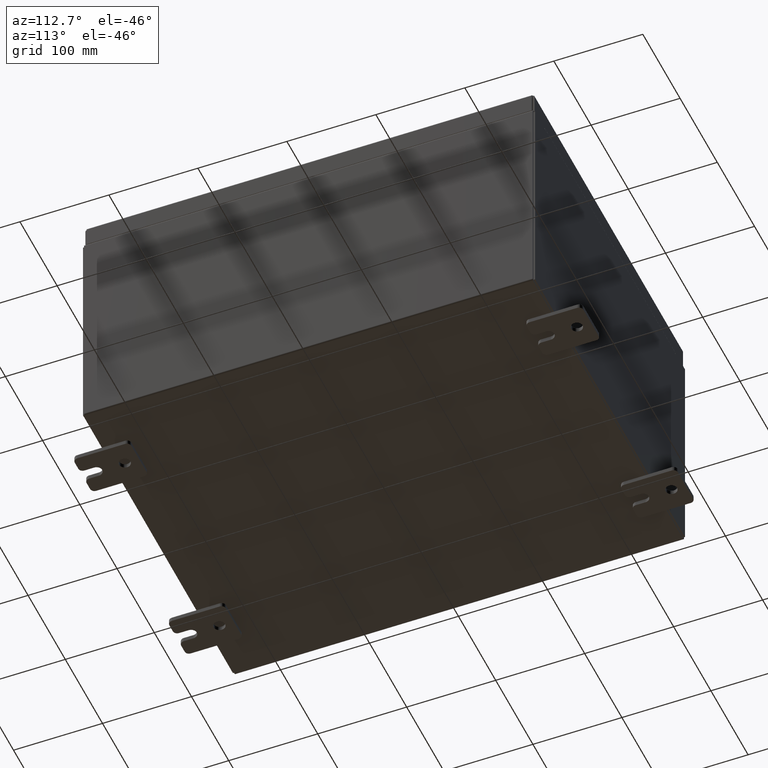
[diagram: clean part render]
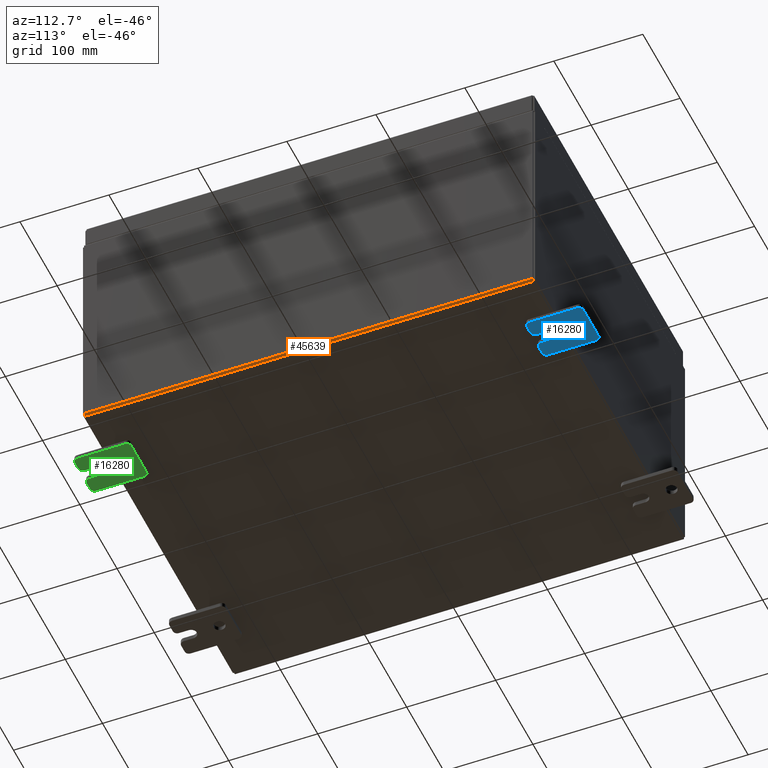
[diagram: same view with three faces highlighted in distinct colors, each labeled with its STEP entity id]
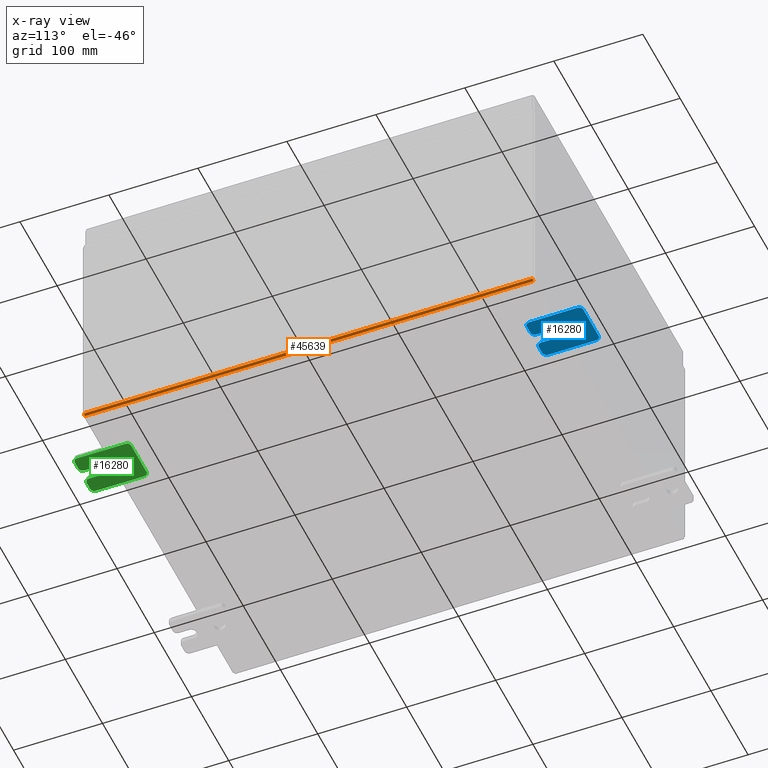
[diagram: x-ray of the same camera — body ghosted, the three highlighted faces saturated]
A machine part, auxiliary view with three faces highlighted in distinct colors.
The next image is the same camera in x-ray (body ghosted, the three faces saturated) — at least one of them is partly hidden behind the body in this view.
Their STEP definitions:

[orange] entity #45639 — the highlighted cylindrical surface (edge-blend (fillet) strip) has radius 2.2276 mm, axis along (0, 1, 0).
#1609 = EDGE_CURVE ( 'NONE', #7943, #34132, #3031, .T. ) ;
#2928 = CIRCLE ( 'NONE', #48213, 0.08770000000000009700 ) ;
#3031 = CIRCLE ( 'NONE', #47885, 0.08770000000000009700 ) ;
#4099 = ORIENTED_EDGE ( 'NONE', *, *, #44708, .T. ) ;
#4550 = ORIENTED_EDGE ( 'NONE', *, *, #10082, .F. ) ;
#5350 = FACE_OUTER_BOUND ( 'NONE', #13927, .T. ) ;
#7943 = VERTEX_POINT ( 'NONE', #9067 ) ;
#8270 = CARTESIAN_POINT ( 'NONE',  ( 7.912300000000001900, 9.925299999999992900, -0.07469999999999994700 ) ) ;
#9067 = CARTESIAN_POINT ( 'NONE',  ( 7.912300000000001900, -9.925300000000001800, -0.07470000000000000300 ) ) ;
#9181 = ORIENTED_EDGE ( 'NONE', *, *, #12337, .F. ) ;
#10082 = EDGE_CURVE ( 'NONE', #15833, #7943, #48026, .T. ) ;
#10287 = DIRECTION ( 'NONE',  ( -0.0000000000000000000, -1.000000000000000000, -0.0000000000000000000 ) ) ;
#12337 = EDGE_CURVE ( 'NONE', #43355, #15833, #2928, .T. ) ;
#13390 = CARTESIAN_POINT ( 'NONE',  ( 7.912300000000001900, 9.925299999999998200, 0.01300000000000015200 ) ) ;
#13927 = EDGE_LOOP ( 'NONE', ( #4550, #9181, #4099, #30922 ) ) ;
#15833 = VERTEX_POINT ( 'NONE', #8270 ) ;
#16811 = VECTOR ( 'NONE', #60551, 39.37007874015748100 ) ;
#18159 = DIRECTION ( 'NONE',  ( 0.0000000000000000000, 0.0000000000000000000, 1.000000000000000000 ) ) ;
#18283 = DIRECTION ( 'NONE',  ( 1.000000000000000000, 0.0000000000000000000, -3.528701887483225300E-015 ) ) ;
#18836 = CARTESIAN_POINT ( 'NONE',  ( 7.912300000000001900, 9.925299999999992900, 0.01300000000000015200 ) ) ;
#19864 = LINE ( 'NONE', #31371, #16811 ) ;
#22096 = VECTOR ( 'NONE', #10287, 39.37007874015748100 ) ;
#23736 = DIRECTION ( 'NONE',  ( 0.0000000000000000000, 0.0000000000000000000, 1.000000000000000000 ) ) ;
#26428 = CARTESIAN_POINT ( 'NONE',  ( 7.912300000000001900, -9.925300000000001800, 0.01300000000000015200 ) ) ;
#27864 = DIRECTION ( 'NONE',  ( 0.0000000000000000000, 1.000000000000000000, 0.0000000000000000000 ) ) ;
#28155 = CYLINDRICAL_SURFACE ( 'NONE', #29534, 0.08770000000000026400 ) ;
#29258 = CARTESIAN_POINT ( 'NONE',  ( 8.000000000000001800, -9.925300000000001800, 0.01299999999999984300 ) ) ;
#29534 = AXIS2_PLACEMENT_3D ( 'NONE', #13390, #27864, #18283 ) ;
#30922 = ORIENTED_EDGE ( 'NONE', *, *, #1609, .F. ) ;
#31371 = CARTESIAN_POINT ( 'NONE',  ( 8.000000000000001800, -9.925300000000001800, 0.01299999999999984700 ) ) ;
#34132 = VERTEX_POINT ( 'NONE', #29258 ) ;
#34235 = CARTESIAN_POINT ( 'NONE',  ( 8.000000000000001800, 9.925299999999992900, 0.01299999999999984700 ) ) ;
#40147 = DIRECTION ( 'NONE',  ( -0.0000000000000000000, -1.000000000000000000, -0.0000000000000000000 ) ) ;
#43355 = VERTEX_POINT ( 'NONE', #34235 ) ;
#44708 = EDGE_CURVE ( 'NONE', #43355, #34132, #19864, .T. ) ;
#45639 = ADVANCED_FACE ( 'NONE', ( #5350 ), #28155, .T. ) ;
#47885 = AXIS2_PLACEMENT_3D ( 'NONE', #26428, #40147, #18159 ) ;
#48026 = LINE ( 'NONE', #59060, #22096 ) ;
#48213 = AXIS2_PLACEMENT_3D ( 'NONE', #18836, #52922, #23736 ) ;
#52922 = DIRECTION ( 'NONE',  ( 0.0000000000000000000, 1.000000000000000000, 0.0000000000000000000 ) ) ;
#59060 = CARTESIAN_POINT ( 'NONE',  ( 7.912300000000001900, 9.925299999999998200, -0.07469999999999994700 ) ) ;
#60551 = DIRECTION ( 'NONE',  ( -0.0000000000000000000, -1.000000000000000000, -0.0000000000000000000 ) ) ;

[blue] entity #16280 — the highlighted planar face has unit normal (0, 0, 1).
#201 = CARTESIAN_POINT ( 'NONE',  ( -0.1879999999999997800, 1.059999999999996300, 0.8099999999999938400 ) ) ;
#1130 = EDGE_CURVE ( 'NONE', #49562, #47235, #24274, .T. ) ;
#1645 = AXIS2_PLACEMENT_3D ( 'NONE', #61835, #32651, #3491 ) ;
#3131 = CARTESIAN_POINT ( 'NONE',  ( -0.1879999999999997800, -1.060000000000004500, -1.000000000000006400 ) ) ;
#3401 = DIRECTION ( 'NONE',  ( 0.0000000000000000000, 0.0000000000000000000, -1.000000000000000000 ) ) ;
#3464 = ORIENTED_EDGE ( 'NONE', *, *, #58450, .F. ) ;
#3491 = DIRECTION ( 'NONE',  ( 0.0000000000000000000, 7.189073667537492800E-016, -1.000000000000000000 ) ) ;
#4491 = CARTESIAN_POINT ( 'NONE',  ( -0.1880000000000001900, -0.6249999999999992200, -0.2499999999999993900 ) ) ;
#4892 = CARTESIAN_POINT ( 'NONE',  ( -0.1880000000000010000, 0.6249999999999992200, -7.703811342100550500E-020 ) ) ;
#5092 = DIRECTION ( 'NONE',  ( 0.0000000000000000000, 0.0000000000000000000, -1.000000000000000000 ) ) ;
#5299 = CARTESIAN_POINT ( 'NONE',  ( -0.1880000000000010000, 0.6249999999999992200, -0.2499999999999999200 ) ) ;
#5671 = EDGE_CURVE ( 'NONE', #59398, #29991, #15731, .T. ) ;
#6518 = CARTESIAN_POINT ( 'NONE',  ( -0.1879999999999997800, 1.249999999999997600, 0.9999999999999951200 ) ) ;
#7316 = DIRECTION ( 'NONE',  ( 0.0000000000000000000, -1.639108796198553600E-015, -1.000000000000000000 ) ) ;
#9438 = DIRECTION ( 'NONE',  ( 0.0000000000000000000, -1.639108796198553600E-015, -1.000000000000000000 ) ) ;
#9797 = DIRECTION ( 'NONE',  ( 0.0000000000000000000, 0.0000000000000000000, -1.000000000000000000 ) ) ;
#10054 = VERTEX_POINT ( 'NONE', #44350 ) ;
#10755 = DIRECTION ( 'NONE',  ( 0.0000000000000000000, 1.000000000000000000, -1.639108796198558100E-015 ) ) ;
#11328 = ORIENTED_EDGE ( 'NONE', *, *, #57592, .F. ) ;
#11867 = CIRCLE ( 'NONE', #1645, 0.1900000000000011100 ) ;
#11933 = ORIENTED_EDGE ( 'NONE', *, *, #38798, .T. ) ;
#12392 = CARTESIAN_POINT ( 'NONE',  ( -0.1880000000000010000, 0.6249999999999992200, -7.703811342100550500E-020 ) ) ;
#12578 = ORIENTED_EDGE ( 'NONE', *, *, #56955, .T. ) ;
#12721 = DIRECTION ( 'NONE',  ( 6.556435184794182400E-016, 1.000000000000000000, 0.0000000000000000000 ) ) ;
#12823 = ORIENTED_EDGE ( 'NONE', *, *, #1130, .T. ) ;
#13055 = ORIENTED_EDGE ( 'NONE', *, *, #31476, .T. ) ;
#13184 = CARTESIAN_POINT ( 'NONE',  ( -0.1879999999999997800, -1.060000000000003400, -0.4400000000000005000 ) ) ;
#13795 = ORIENTED_EDGE ( 'NONE', *, *, #52149, .T. ) ;
#14307 = EDGE_CURVE ( 'NONE', #48377, #16268, #53113, .T. ) ;
#14353 = ORIENTED_EDGE ( 'NONE', *, *, #54410, .F. ) ;
#14421 = AXIS2_PLACEMENT_3D ( 'NONE', #15750, #49833, #20629 ) ;
#14475 = DIRECTION ( 'NONE',  ( -6.556435184794182400E-016, -1.000000000000000000, -1.639108796198545600E-016 ) ) ;
#14495 = CIRCLE ( 'NONE', #16638, 0.1900000000000011100 ) ;
#15440 = VERTEX_POINT ( 'NONE', #3131 ) ;
#15520 = EDGE_CURVE ( 'NONE', #10054, #50348, #33980, .T. ) ;
#15563 = CARTESIAN_POINT ( 'NONE',  ( -0.1879999999999997800, -1.060000000000001200, 0.9999999999999988900 ) ) ;
#15731 = CIRCLE ( 'NONE', #60254, 0.1900000000000011100 ) ;
#15750 = CARTESIAN_POINT ( 'NONE',  ( -0.1880000000000001900, -0.6249999999999992200, 6.829619984160658000E-017 ) ) ;
#16268 = VERTEX_POINT ( 'NONE', #15563 ) ;
#16280 = ADVANCED_FACE ( 'NONE', ( #52987, #51447 ), #44767, .F. ) ;
#16638 = AXIS2_PLACEMENT_3D ( 'NONE', #201, #34253, #5092 ) ;
#16858 = DIRECTION ( 'NONE',  ( 0.0000000000000000000, 1.639108796198553600E-015, 1.000000000000000000 ) ) ;
#17189 = CARTESIAN_POINT ( 'NONE',  ( -0.1879999999999997800, -1.250000000000004700, -0.4400000000000002200 ) ) ;
#17271 = DIRECTION ( 'NONE',  ( 0.0000000000000000000, 0.0000000000000000000, -1.000000000000000000 ) ) ;
#18084 = DIRECTION ( 'NONE',  ( 0.0000000000000000000, 0.0000000000000000000, -1.000000000000000000 ) ) ;
#18378 = CIRCLE ( 'NONE', #58651, 0.1900000000000011400 ) ;
#20462 = DIRECTION ( 'NONE',  ( 1.000000000000000000, 0.0000000000000000000, -0.0000000000000000000 ) ) ;
#20629 = DIRECTION ( 'NONE',  ( -6.829619984160660000E-016, -1.000000000000000000, 0.0000000000000000000 ) ) ;
#20790 = CARTESIAN_POINT ( 'NONE',  ( -0.1879999999999997800, -1.250000000000003100, 0.4400000000000020000 ) ) ;
#21456 = LINE ( 'NONE', #39920, #37438 ) ;
#22131 = ORIENTED_EDGE ( 'NONE', *, *, #44746, .F. ) ;
#22721 = VECTOR ( 'NONE', #14475, 39.37007874015748100 ) ;
#23038 = ORIENTED_EDGE ( 'NONE', *, *, #14307, .F. ) ;
#24274 = CIRCLE ( 'NONE', #29525, 0.1900000000000011100 ) ;
#24435 = ORIENTED_EDGE ( 'NONE', *, *, #45860, .T. ) ;
#27336 = VERTEX_POINT ( 'NONE', #20790 ) ;
#27380 = CARTESIAN_POINT ( 'NONE',  ( -0.1879999999999997800, -1.060000000000002100, 0.4400000000000016700 ) ) ;
#27593 = CARTESIAN_POINT ( 'NONE',  ( -0.1879999999999997800, 1.249999999999994700, -0.8100000000000092700 ) ) ;
#28203 = VECTOR ( 'NONE', #7316, 39.37007874015748100 ) ;
#28481 = ORIENTED_EDGE ( 'NONE', *, *, #15520, .F. ) ;
#29054 = CIRCLE ( 'NONE', #55663, 0.1900000000000011100 ) ;
#29525 = AXIS2_PLACEMENT_3D ( 'NONE', #39522, #35116, #40438 ) ;
#29991 = VERTEX_POINT ( 'NONE', #38724 ) ;
#30373 = ORIENTED_EDGE ( 'NONE', *, *, #30633, .F. ) ;
#30390 = EDGE_LOOP ( 'NONE', ( #22131, #11933, #23038, #13795, #3464, #12823, #30373, #13055, #54414, #38331, #14353, #28481, #11328, #56049 ) ) ;
#30494 = CARTESIAN_POINT ( 'NONE',  ( -0.1879999999999997800, -1.250000000000005300, -0.8100000000000047200 ) ) ;
#30633 = EDGE_CURVE ( 'NONE', #15440, #47235, #21456, .T. ) ;
#30937 = VECTOR ( 'NONE', #12721, 39.37007874015748100 ) ;
#31476 = EDGE_CURVE ( 'NONE', #15440, #35544, #29054, .T. ) ;
#31584 = AXIS2_PLACEMENT_3D ( 'NONE', #39855, #20462, #54564 ) ;
#31720 = CIRCLE ( 'NONE', #57234, 0.2499999999999999200 ) ;
#32289 = DIRECTION ( 'NONE',  ( 0.0000000000000000000, 0.0000000000000000000, -1.000000000000000000 ) ) ;
#32568 = DIRECTION ( 'NONE',  ( -1.000000000000000000, -0.0000000000000000000, 0.0000000000000000000 ) ) ;
#32595 = CARTESIAN_POINT ( 'NONE',  ( -0.1880000000000010000, 0.6249999999999992200, 0.2499999999999999200 ) ) ;
#32651 = DIRECTION ( 'NONE',  ( -1.000000000000000000, -0.0000000000000000000, 0.0000000000000000000 ) ) ;
#32762 = AXIS2_PLACEMENT_3D ( 'NONE', #4892, #38959, #9797 ) ;
#33980 = CIRCLE ( 'NONE', #14421, 0.2499999999999999200 ) ;
#34253 = DIRECTION ( 'NONE',  ( -1.000000000000000000, -0.0000000000000000000, 0.0000000000000000000 ) ) ;
#35116 = DIRECTION ( 'NONE',  ( -1.000000000000000000, -0.0000000000000000000, 0.0000000000000000000 ) ) ;
#35544 = VERTEX_POINT ( 'NONE', #30494 ) ;
#35933 = VECTOR ( 'NONE', #9438, 39.37007874015748100 ) ;
#36546 = CIRCLE ( 'NONE', #32762, 0.2499999999999999200 ) ;
#37438 = VECTOR ( 'NONE', #10755, 39.37007874015748100 ) ;
#38331 = ORIENTED_EDGE ( 'NONE', *, *, #5671, .T. ) ;
#38600 = CARTESIAN_POINT ( 'NONE',  ( -0.1879999999999997800, -1.250000000000002200, 0.9999999999999992200 ) ) ;
#38687 = CARTESIAN_POINT ( 'NONE',  ( -0.1880000000000004700, -1.060000000000002100, 0.2500000000000005000 ) ) ;
#38724 = CARTESIAN_POINT ( 'NONE',  ( -0.1880000000000004700, -1.060000000000003400, -0.2499999999999994400 ) ) ;
#38798 = EDGE_CURVE ( 'NONE', #62572, #16268, #11867, .T. ) ;
#38959 = DIRECTION ( 'NONE',  ( 1.000000000000000000, -0.0000000000000000000, -5.163192708025532000E-017 ) ) ;
#39522 = CARTESIAN_POINT ( 'NONE',  ( -0.1879999999999997800, 1.059999999999993600, -0.8100000000000089400 ) ) ;
#39855 = CARTESIAN_POINT ( 'NONE',  ( -0.1879999999999997800, 0.0000000000000000000, 0.0000000000000000000 ) ) ;
#39920 = CARTESIAN_POINT ( 'NONE',  ( -0.1879999999999997800, -1.250000000000005600, -1.000000000000006200 ) ) ;
#40133 = VECTOR ( 'NONE', #40798, 39.37007874015748100 ) ;
#40438 = DIRECTION ( 'NONE',  ( 0.0000000000000000000, 0.0000000000000000000, -1.000000000000000000 ) ) ;
#40637 = CARTESIAN_POINT ( 'NONE',  ( -0.1879999999999997800, 1.059999999999993400, -1.000000000000010000 ) ) ;
#40798 = DIRECTION ( 'NONE',  ( 0.0000000000000000000, -1.000000000000000000, 1.639108796198558100E-015 ) ) ;
#41216 = LINE ( 'NONE', #55882, #28203 ) ;
#41772 = VERTEX_POINT ( 'NONE', #32595 ) ;
#41915 = CARTESIAN_POINT ( 'NONE',  ( -0.1880000000000005800, -1.250000000000003800, 0.2500000000000005000 ) ) ;
#43911 = LINE ( 'NONE', #41915, #30937 ) ;
#43950 = EDGE_LOOP ( 'NONE', ( #24435, #12578 ) ) ;
#44350 = CARTESIAN_POINT ( 'NONE',  ( -0.1880000000000001900, -0.6249999999999992200, 0.2500000000000005000 ) ) ;
#44517 = VERTEX_POINT ( 'NONE', #5299 ) ;
#44746 = EDGE_CURVE ( 'NONE', #62572, #27336, #41216, .T. ) ;
#44767 = PLANE ( 'NONE',  #31584 ) ;
#45860 = EDGE_CURVE ( 'NONE', #44517, #41772, #36546, .T. ) ;
#46063 = CARTESIAN_POINT ( 'NONE',  ( -0.1879999999999997800, 1.249999999999994200, -1.000000000000010400 ) ) ;
#46484 = DIRECTION ( 'NONE',  ( 1.000000000000000000, -0.0000000000000000000, -5.163192708025532000E-017 ) ) ;
#46601 = CARTESIAN_POINT ( 'NONE',  ( -0.1880000000000001900, -0.6249999999999992200, -0.2499999999999998600 ) ) ;
#47235 = VERTEX_POINT ( 'NONE', #40637 ) ;
#47269 = DIRECTION ( 'NONE',  ( -1.000000000000000000, -0.0000000000000000000, 0.0000000000000000000 ) ) ;
#48377 = VERTEX_POINT ( 'NONE', #52037 ) ;
#49562 = VERTEX_POINT ( 'NONE', #27593 ) ;
#49833 = DIRECTION ( 'NONE',  ( -1.000000000000000000, 6.523827964459549700E-016, 5.163192708025532000E-017 ) ) ;
#50195 = LINE ( 'NONE', #4491, #22721 ) ;
#50348 = VERTEX_POINT ( 'NONE', #46601 ) ;
#50399 = EDGE_CURVE ( 'NONE', #59806, #27336, #18378, .T. ) ;
#51447 = FACE_OUTER_BOUND ( 'NONE', #30390, .T. ) ;
#51466 = VECTOR ( 'NONE', #16858, 39.37007874015748100 ) ;
#52037 = CARTESIAN_POINT ( 'NONE',  ( -0.1879999999999997800, 1.059999999999996500, 0.9999999999999953400 ) ) ;
#52149 = EDGE_CURVE ( 'NONE', #48377, #58262, #14495, .T. ) ;
#52987 = FACE_BOUND ( 'NONE', #43950, .T. ) ;
#53113 = LINE ( 'NONE', #6518, #40133 ) ;
#54410 = EDGE_CURVE ( 'NONE', #50348, #29991, #50195, .T. ) ;
#54414 = ORIENTED_EDGE ( 'NONE', *, *, #62047, .F. ) ;
#54564 = DIRECTION ( 'NONE',  ( -0.0000000000000000000, 0.0000000000000000000, -1.000000000000000000 ) ) ;
#55663 = AXIS2_PLACEMENT_3D ( 'NONE', #61746, #32568, #3401 ) ;
#55882 = CARTESIAN_POINT ( 'NONE',  ( -0.1879999999999997800, -1.250000000000002200, 0.9999999999999992200 ) ) ;
#55909 = CARTESIAN_POINT ( 'NONE',  ( -0.1879999999999997800, -1.250000000000002400, 0.8099999999999980500 ) ) ;
#56049 = ORIENTED_EDGE ( 'NONE', *, *, #50399, .T. ) ;
#56955 = EDGE_CURVE ( 'NONE', #41772, #44517, #31720, .T. ) ;
#57234 = AXIS2_PLACEMENT_3D ( 'NONE', #12392, #46484, #17271 ) ;
#57592 = EDGE_CURVE ( 'NONE', #59806, #10054, #43911, .T. ) ;
#58262 = VERTEX_POINT ( 'NONE', #58728 ) ;
#58450 = EDGE_CURVE ( 'NONE', #49562, #58262, #59860, .T. ) ;
#58651 = AXIS2_PLACEMENT_3D ( 'NONE', #27380, #61477, #32289 ) ;
#58728 = CARTESIAN_POINT ( 'NONE',  ( -0.1879999999999997800, 1.249999999999997300, 0.8099999999999935000 ) ) ;
#59398 = VERTEX_POINT ( 'NONE', #17189 ) ;
#59806 = VERTEX_POINT ( 'NONE', #38687 ) ;
#59860 = LINE ( 'NONE', #46063, #51466 ) ;
#60254 = AXIS2_PLACEMENT_3D ( 'NONE', #13184, #47269, #18084 ) ;
#60334 = LINE ( 'NONE', #38600, #35933 ) ;
#61477 = DIRECTION ( 'NONE',  ( -1.000000000000000000, -0.0000000000000000000, 0.0000000000000000000 ) ) ;
#61746 = CARTESIAN_POINT ( 'NONE',  ( -0.1879999999999997800, -1.060000000000004100, -0.8100000000000050500 ) ) ;
#61835 = CARTESIAN_POINT ( 'NONE',  ( -0.1879999999999997800, -1.060000000000001600, 0.8099999999999978300 ) ) ;
#62047 = EDGE_CURVE ( 'NONE', #59398, #35544, #60334, .T. ) ;
#62572 = VERTEX_POINT ( 'NONE', #55909 ) ;

[green] entity #16280 — the highlighted planar face has unit normal (0, 0, 1).
#201 = CARTESIAN_POINT ( 'NONE',  ( -0.1879999999999997800, 1.059999999999996300, 0.8099999999999938400 ) ) ;
#1130 = EDGE_CURVE ( 'NONE', #49562, #47235, #24274, .T. ) ;
#1645 = AXIS2_PLACEMENT_3D ( 'NONE', #61835, #32651, #3491 ) ;
#3131 = CARTESIAN_POINT ( 'NONE',  ( -0.1879999999999997800, -1.060000000000004500, -1.000000000000006400 ) ) ;
#3401 = DIRECTION ( 'NONE',  ( 0.0000000000000000000, 0.0000000000000000000, -1.000000000000000000 ) ) ;
#3464 = ORIENTED_EDGE ( 'NONE', *, *, #58450, .F. ) ;
#3491 = DIRECTION ( 'NONE',  ( 0.0000000000000000000, 7.189073667537492800E-016, -1.000000000000000000 ) ) ;
#4491 = CARTESIAN_POINT ( 'NONE',  ( -0.1880000000000001900, -0.6249999999999992200, -0.2499999999999993900 ) ) ;
#4892 = CARTESIAN_POINT ( 'NONE',  ( -0.1880000000000010000, 0.6249999999999992200, -7.703811342100550500E-020 ) ) ;
#5092 = DIRECTION ( 'NONE',  ( 0.0000000000000000000, 0.0000000000000000000, -1.000000000000000000 ) ) ;
#5299 = CARTESIAN_POINT ( 'NONE',  ( -0.1880000000000010000, 0.6249999999999992200, -0.2499999999999999200 ) ) ;
#5671 = EDGE_CURVE ( 'NONE', #59398, #29991, #15731, .T. ) ;
#6518 = CARTESIAN_POINT ( 'NONE',  ( -0.1879999999999997800, 1.249999999999997600, 0.9999999999999951200 ) ) ;
#7316 = DIRECTION ( 'NONE',  ( 0.0000000000000000000, -1.639108796198553600E-015, -1.000000000000000000 ) ) ;
#9438 = DIRECTION ( 'NONE',  ( 0.0000000000000000000, -1.639108796198553600E-015, -1.000000000000000000 ) ) ;
#9797 = DIRECTION ( 'NONE',  ( 0.0000000000000000000, 0.0000000000000000000, -1.000000000000000000 ) ) ;
#10054 = VERTEX_POINT ( 'NONE', #44350 ) ;
#10755 = DIRECTION ( 'NONE',  ( 0.0000000000000000000, 1.000000000000000000, -1.639108796198558100E-015 ) ) ;
#11328 = ORIENTED_EDGE ( 'NONE', *, *, #57592, .F. ) ;
#11867 = CIRCLE ( 'NONE', #1645, 0.1900000000000011100 ) ;
#11933 = ORIENTED_EDGE ( 'NONE', *, *, #38798, .T. ) ;
#12392 = CARTESIAN_POINT ( 'NONE',  ( -0.1880000000000010000, 0.6249999999999992200, -7.703811342100550500E-020 ) ) ;
#12578 = ORIENTED_EDGE ( 'NONE', *, *, #56955, .T. ) ;
#12721 = DIRECTION ( 'NONE',  ( 6.556435184794182400E-016, 1.000000000000000000, 0.0000000000000000000 ) ) ;
#12823 = ORIENTED_EDGE ( 'NONE', *, *, #1130, .T. ) ;
#13055 = ORIENTED_EDGE ( 'NONE', *, *, #31476, .T. ) ;
#13184 = CARTESIAN_POINT ( 'NONE',  ( -0.1879999999999997800, -1.060000000000003400, -0.4400000000000005000 ) ) ;
#13795 = ORIENTED_EDGE ( 'NONE', *, *, #52149, .T. ) ;
#14307 = EDGE_CURVE ( 'NONE', #48377, #16268, #53113, .T. ) ;
#14353 = ORIENTED_EDGE ( 'NONE', *, *, #54410, .F. ) ;
#14421 = AXIS2_PLACEMENT_3D ( 'NONE', #15750, #49833, #20629 ) ;
#14475 = DIRECTION ( 'NONE',  ( -6.556435184794182400E-016, -1.000000000000000000, -1.639108796198545600E-016 ) ) ;
#14495 = CIRCLE ( 'NONE', #16638, 0.1900000000000011100 ) ;
#15440 = VERTEX_POINT ( 'NONE', #3131 ) ;
#15520 = EDGE_CURVE ( 'NONE', #10054, #50348, #33980, .T. ) ;
#15563 = CARTESIAN_POINT ( 'NONE',  ( -0.1879999999999997800, -1.060000000000001200, 0.9999999999999988900 ) ) ;
#15731 = CIRCLE ( 'NONE', #60254, 0.1900000000000011100 ) ;
#15750 = CARTESIAN_POINT ( 'NONE',  ( -0.1880000000000001900, -0.6249999999999992200, 6.829619984160658000E-017 ) ) ;
#16268 = VERTEX_POINT ( 'NONE', #15563 ) ;
#16280 = ADVANCED_FACE ( 'NONE', ( #52987, #51447 ), #44767, .F. ) ;
#16638 = AXIS2_PLACEMENT_3D ( 'NONE', #201, #34253, #5092 ) ;
#16858 = DIRECTION ( 'NONE',  ( 0.0000000000000000000, 1.639108796198553600E-015, 1.000000000000000000 ) ) ;
#17189 = CARTESIAN_POINT ( 'NONE',  ( -0.1879999999999997800, -1.250000000000004700, -0.4400000000000002200 ) ) ;
#17271 = DIRECTION ( 'NONE',  ( 0.0000000000000000000, 0.0000000000000000000, -1.000000000000000000 ) ) ;
#18084 = DIRECTION ( 'NONE',  ( 0.0000000000000000000, 0.0000000000000000000, -1.000000000000000000 ) ) ;
#18378 = CIRCLE ( 'NONE', #58651, 0.1900000000000011400 ) ;
#20462 = DIRECTION ( 'NONE',  ( 1.000000000000000000, 0.0000000000000000000, -0.0000000000000000000 ) ) ;
#20629 = DIRECTION ( 'NONE',  ( -6.829619984160660000E-016, -1.000000000000000000, 0.0000000000000000000 ) ) ;
#20790 = CARTESIAN_POINT ( 'NONE',  ( -0.1879999999999997800, -1.250000000000003100, 0.4400000000000020000 ) ) ;
#21456 = LINE ( 'NONE', #39920, #37438 ) ;
#22131 = ORIENTED_EDGE ( 'NONE', *, *, #44746, .F. ) ;
#22721 = VECTOR ( 'NONE', #14475, 39.37007874015748100 ) ;
#23038 = ORIENTED_EDGE ( 'NONE', *, *, #14307, .F. ) ;
#24274 = CIRCLE ( 'NONE', #29525, 0.1900000000000011100 ) ;
#24435 = ORIENTED_EDGE ( 'NONE', *, *, #45860, .T. ) ;
#27336 = VERTEX_POINT ( 'NONE', #20790 ) ;
#27380 = CARTESIAN_POINT ( 'NONE',  ( -0.1879999999999997800, -1.060000000000002100, 0.4400000000000016700 ) ) ;
#27593 = CARTESIAN_POINT ( 'NONE',  ( -0.1879999999999997800, 1.249999999999994700, -0.8100000000000092700 ) ) ;
#28203 = VECTOR ( 'NONE', #7316, 39.37007874015748100 ) ;
#28481 = ORIENTED_EDGE ( 'NONE', *, *, #15520, .F. ) ;
#29054 = CIRCLE ( 'NONE', #55663, 0.1900000000000011100 ) ;
#29525 = AXIS2_PLACEMENT_3D ( 'NONE', #39522, #35116, #40438 ) ;
#29991 = VERTEX_POINT ( 'NONE', #38724 ) ;
#30373 = ORIENTED_EDGE ( 'NONE', *, *, #30633, .F. ) ;
#30390 = EDGE_LOOP ( 'NONE', ( #22131, #11933, #23038, #13795, #3464, #12823, #30373, #13055, #54414, #38331, #14353, #28481, #11328, #56049 ) ) ;
#30494 = CARTESIAN_POINT ( 'NONE',  ( -0.1879999999999997800, -1.250000000000005300, -0.8100000000000047200 ) ) ;
#30633 = EDGE_CURVE ( 'NONE', #15440, #47235, #21456, .T. ) ;
#30937 = VECTOR ( 'NONE', #12721, 39.37007874015748100 ) ;
#31476 = EDGE_CURVE ( 'NONE', #15440, #35544, #29054, .T. ) ;
#31584 = AXIS2_PLACEMENT_3D ( 'NONE', #39855, #20462, #54564 ) ;
#31720 = CIRCLE ( 'NONE', #57234, 0.2499999999999999200 ) ;
#32289 = DIRECTION ( 'NONE',  ( 0.0000000000000000000, 0.0000000000000000000, -1.000000000000000000 ) ) ;
#32568 = DIRECTION ( 'NONE',  ( -1.000000000000000000, -0.0000000000000000000, 0.0000000000000000000 ) ) ;
#32595 = CARTESIAN_POINT ( 'NONE',  ( -0.1880000000000010000, 0.6249999999999992200, 0.2499999999999999200 ) ) ;
#32651 = DIRECTION ( 'NONE',  ( -1.000000000000000000, -0.0000000000000000000, 0.0000000000000000000 ) ) ;
#32762 = AXIS2_PLACEMENT_3D ( 'NONE', #4892, #38959, #9797 ) ;
#33980 = CIRCLE ( 'NONE', #14421, 0.2499999999999999200 ) ;
#34253 = DIRECTION ( 'NONE',  ( -1.000000000000000000, -0.0000000000000000000, 0.0000000000000000000 ) ) ;
#35116 = DIRECTION ( 'NONE',  ( -1.000000000000000000, -0.0000000000000000000, 0.0000000000000000000 ) ) ;
#35544 = VERTEX_POINT ( 'NONE', #30494 ) ;
#35933 = VECTOR ( 'NONE', #9438, 39.37007874015748100 ) ;
#36546 = CIRCLE ( 'NONE', #32762, 0.2499999999999999200 ) ;
#37438 = VECTOR ( 'NONE', #10755, 39.37007874015748100 ) ;
#38331 = ORIENTED_EDGE ( 'NONE', *, *, #5671, .T. ) ;
#38600 = CARTESIAN_POINT ( 'NONE',  ( -0.1879999999999997800, -1.250000000000002200, 0.9999999999999992200 ) ) ;
#38687 = CARTESIAN_POINT ( 'NONE',  ( -0.1880000000000004700, -1.060000000000002100, 0.2500000000000005000 ) ) ;
#38724 = CARTESIAN_POINT ( 'NONE',  ( -0.1880000000000004700, -1.060000000000003400, -0.2499999999999994400 ) ) ;
#38798 = EDGE_CURVE ( 'NONE', #62572, #16268, #11867, .T. ) ;
#38959 = DIRECTION ( 'NONE',  ( 1.000000000000000000, -0.0000000000000000000, -5.163192708025532000E-017 ) ) ;
#39522 = CARTESIAN_POINT ( 'NONE',  ( -0.1879999999999997800, 1.059999999999993600, -0.8100000000000089400 ) ) ;
#39855 = CARTESIAN_POINT ( 'NONE',  ( -0.1879999999999997800, 0.0000000000000000000, 0.0000000000000000000 ) ) ;
#39920 = CARTESIAN_POINT ( 'NONE',  ( -0.1879999999999997800, -1.250000000000005600, -1.000000000000006200 ) ) ;
#40133 = VECTOR ( 'NONE', #40798, 39.37007874015748100 ) ;
#40438 = DIRECTION ( 'NONE',  ( 0.0000000000000000000, 0.0000000000000000000, -1.000000000000000000 ) ) ;
#40637 = CARTESIAN_POINT ( 'NONE',  ( -0.1879999999999997800, 1.059999999999993400, -1.000000000000010000 ) ) ;
#40798 = DIRECTION ( 'NONE',  ( 0.0000000000000000000, -1.000000000000000000, 1.639108796198558100E-015 ) ) ;
#41216 = LINE ( 'NONE', #55882, #28203 ) ;
#41772 = VERTEX_POINT ( 'NONE', #32595 ) ;
#41915 = CARTESIAN_POINT ( 'NONE',  ( -0.1880000000000005800, -1.250000000000003800, 0.2500000000000005000 ) ) ;
#43911 = LINE ( 'NONE', #41915, #30937 ) ;
#43950 = EDGE_LOOP ( 'NONE', ( #24435, #12578 ) ) ;
#44350 = CARTESIAN_POINT ( 'NONE',  ( -0.1880000000000001900, -0.6249999999999992200, 0.2500000000000005000 ) ) ;
#44517 = VERTEX_POINT ( 'NONE', #5299 ) ;
#44746 = EDGE_CURVE ( 'NONE', #62572, #27336, #41216, .T. ) ;
#44767 = PLANE ( 'NONE',  #31584 ) ;
#45860 = EDGE_CURVE ( 'NONE', #44517, #41772, #36546, .T. ) ;
#46063 = CARTESIAN_POINT ( 'NONE',  ( -0.1879999999999997800, 1.249999999999994200, -1.000000000000010400 ) ) ;
#46484 = DIRECTION ( 'NONE',  ( 1.000000000000000000, -0.0000000000000000000, -5.163192708025532000E-017 ) ) ;
#46601 = CARTESIAN_POINT ( 'NONE',  ( -0.1880000000000001900, -0.6249999999999992200, -0.2499999999999998600 ) ) ;
#47235 = VERTEX_POINT ( 'NONE', #40637 ) ;
#47269 = DIRECTION ( 'NONE',  ( -1.000000000000000000, -0.0000000000000000000, 0.0000000000000000000 ) ) ;
#48377 = VERTEX_POINT ( 'NONE', #52037 ) ;
#49562 = VERTEX_POINT ( 'NONE', #27593 ) ;
#49833 = DIRECTION ( 'NONE',  ( -1.000000000000000000, 6.523827964459549700E-016, 5.163192708025532000E-017 ) ) ;
#50195 = LINE ( 'NONE', #4491, #22721 ) ;
#50348 = VERTEX_POINT ( 'NONE', #46601 ) ;
#50399 = EDGE_CURVE ( 'NONE', #59806, #27336, #18378, .T. ) ;
#51447 = FACE_OUTER_BOUND ( 'NONE', #30390, .T. ) ;
#51466 = VECTOR ( 'NONE', #16858, 39.37007874015748100 ) ;
#52037 = CARTESIAN_POINT ( 'NONE',  ( -0.1879999999999997800, 1.059999999999996500, 0.9999999999999953400 ) ) ;
#52149 = EDGE_CURVE ( 'NONE', #48377, #58262, #14495, .T. ) ;
#52987 = FACE_BOUND ( 'NONE', #43950, .T. ) ;
#53113 = LINE ( 'NONE', #6518, #40133 ) ;
#54410 = EDGE_CURVE ( 'NONE', #50348, #29991, #50195, .T. ) ;
#54414 = ORIENTED_EDGE ( 'NONE', *, *, #62047, .F. ) ;
#54564 = DIRECTION ( 'NONE',  ( -0.0000000000000000000, 0.0000000000000000000, -1.000000000000000000 ) ) ;
#55663 = AXIS2_PLACEMENT_3D ( 'NONE', #61746, #32568, #3401 ) ;
#55882 = CARTESIAN_POINT ( 'NONE',  ( -0.1879999999999997800, -1.250000000000002200, 0.9999999999999992200 ) ) ;
#55909 = CARTESIAN_POINT ( 'NONE',  ( -0.1879999999999997800, -1.250000000000002400, 0.8099999999999980500 ) ) ;
#56049 = ORIENTED_EDGE ( 'NONE', *, *, #50399, .T. ) ;
#56955 = EDGE_CURVE ( 'NONE', #41772, #44517, #31720, .T. ) ;
#57234 = AXIS2_PLACEMENT_3D ( 'NONE', #12392, #46484, #17271 ) ;
#57592 = EDGE_CURVE ( 'NONE', #59806, #10054, #43911, .T. ) ;
#58262 = VERTEX_POINT ( 'NONE', #58728 ) ;
#58450 = EDGE_CURVE ( 'NONE', #49562, #58262, #59860, .T. ) ;
#58651 = AXIS2_PLACEMENT_3D ( 'NONE', #27380, #61477, #32289 ) ;
#58728 = CARTESIAN_POINT ( 'NONE',  ( -0.1879999999999997800, 1.249999999999997300, 0.8099999999999935000 ) ) ;
#59398 = VERTEX_POINT ( 'NONE', #17189 ) ;
#59806 = VERTEX_POINT ( 'NONE', #38687 ) ;
#59860 = LINE ( 'NONE', #46063, #51466 ) ;
#60254 = AXIS2_PLACEMENT_3D ( 'NONE', #13184, #47269, #18084 ) ;
#60334 = LINE ( 'NONE', #38600, #35933 ) ;
#61477 = DIRECTION ( 'NONE',  ( -1.000000000000000000, -0.0000000000000000000, 0.0000000000000000000 ) ) ;
#61746 = CARTESIAN_POINT ( 'NONE',  ( -0.1879999999999997800, -1.060000000000004100, -0.8100000000000050500 ) ) ;
#61835 = CARTESIAN_POINT ( 'NONE',  ( -0.1879999999999997800, -1.060000000000001600, 0.8099999999999978300 ) ) ;
#62047 = EDGE_CURVE ( 'NONE', #59398, #35544, #60334, .T. ) ;
#62572 = VERTEX_POINT ( 'NONE', #55909 ) ;